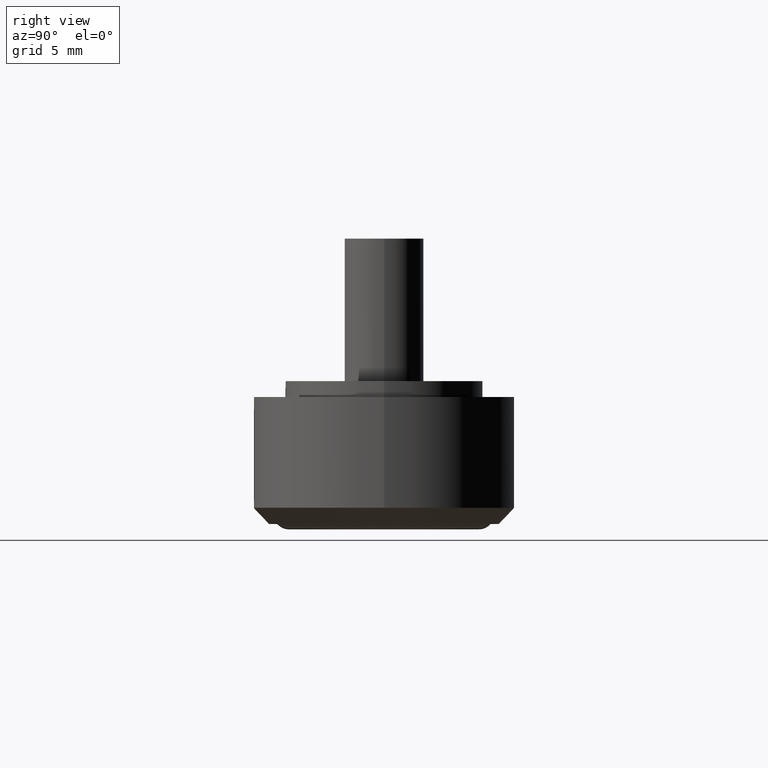
[diagram: clean part render]
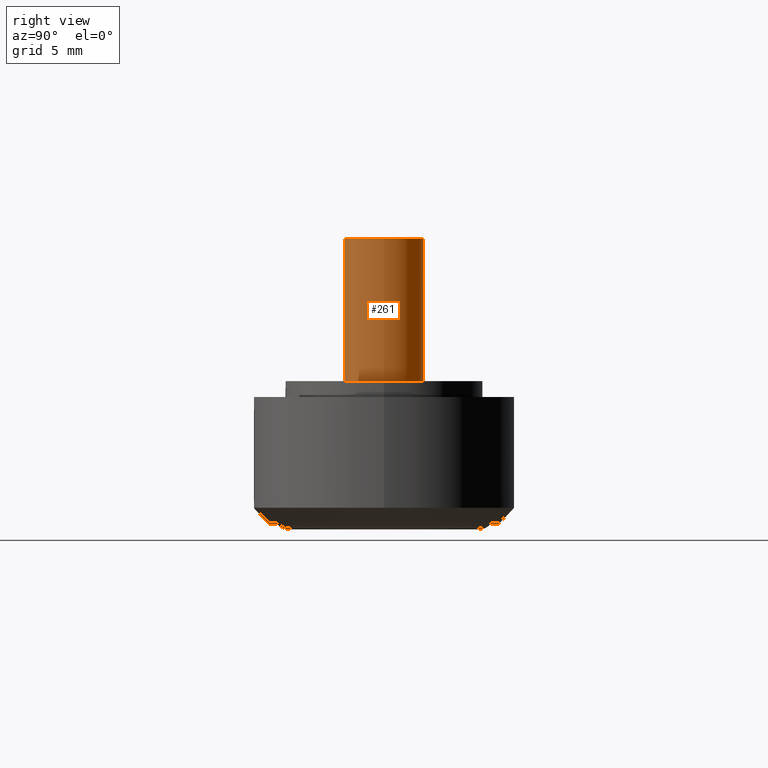
[diagram: same view with one face highlighted and labeled with its STEP entity id]
A machine part, right view. The second image highlights one B-rep face of the part: STEP entity #261.
In plain terms, the highlighted cylindrical surface (bore or boss wall) has radius 2.5 mm, axis along (-0, -0, 1).
Its self-contained STEP definition (entity closure, byte-faithful):
#55=FACE_BOUND('',#112,.T.);
#77=FACE_OUTER_BOUND('',#111,.T.);
#111=EDGE_LOOP('',(#221));
#112=EDGE_LOOP('',(#222));
#144=CIRCLE('',#301,2.5);
#145=CIRCLE('',#302,2.5);
#166=VERTEX_POINT('',#465);
#167=VERTEX_POINT('',#467);
#188=EDGE_CURVE('',#166,#166,#144,.T.);
#189=EDGE_CURVE('',#167,#167,#145,.T.);
#221=ORIENTED_EDGE('',*,*,#188,.F.);
#222=ORIENTED_EDGE('',*,*,#189,.F.);
#246=CYLINDRICAL_SURFACE('',#300,2.5);
#261=ADVANCED_FACE('',(#77,#55),#246,.T.);
#300=AXIS2_PLACEMENT_3D('',#464,#376,#377);
#301=AXIS2_PLACEMENT_3D('',#466,#378,#379);
#302=AXIS2_PLACEMENT_3D('',#468,#380,#381);
#376=DIRECTION('center_axis',(0.,0.,1.));
#377=DIRECTION('ref_axis',(-1.,0.,0.));
#378=DIRECTION('center_axis',(0.,0.,1.));
#379=DIRECTION('ref_axis',(-1.,0.,0.));
#380=DIRECTION('center_axis',(0.,0.,-1.));
#381=DIRECTION('ref_axis',(-1.,0.,0.));
#464=CARTESIAN_POINT('Origin',(0.,0.,9.));
#465=CARTESIAN_POINT('',(2.5,3.06161699786838E-16,18.));
#466=CARTESIAN_POINT('Origin',(0.,0.,18.));
#467=CARTESIAN_POINT('',(2.5,3.06161699786838E-16,9.));
#468=CARTESIAN_POINT('Origin',(0.,0.,9.));